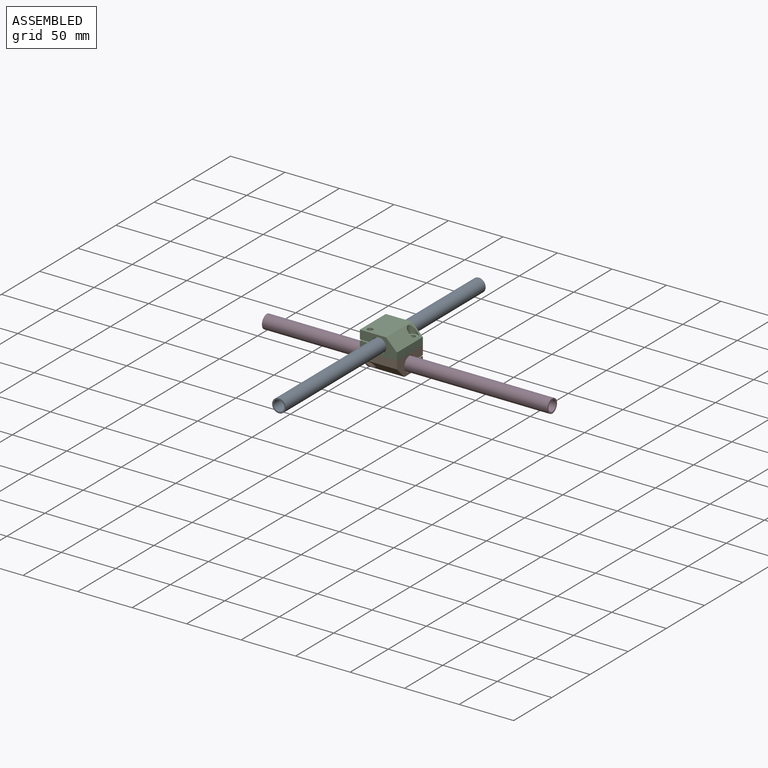
[diagram: assembled view]
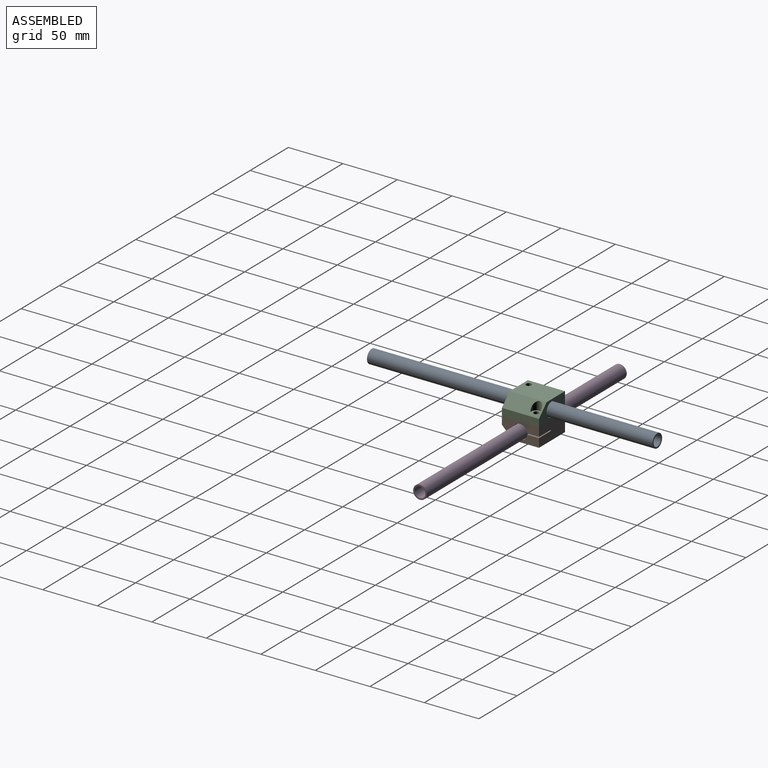
[diagram: assembled view, second angle]
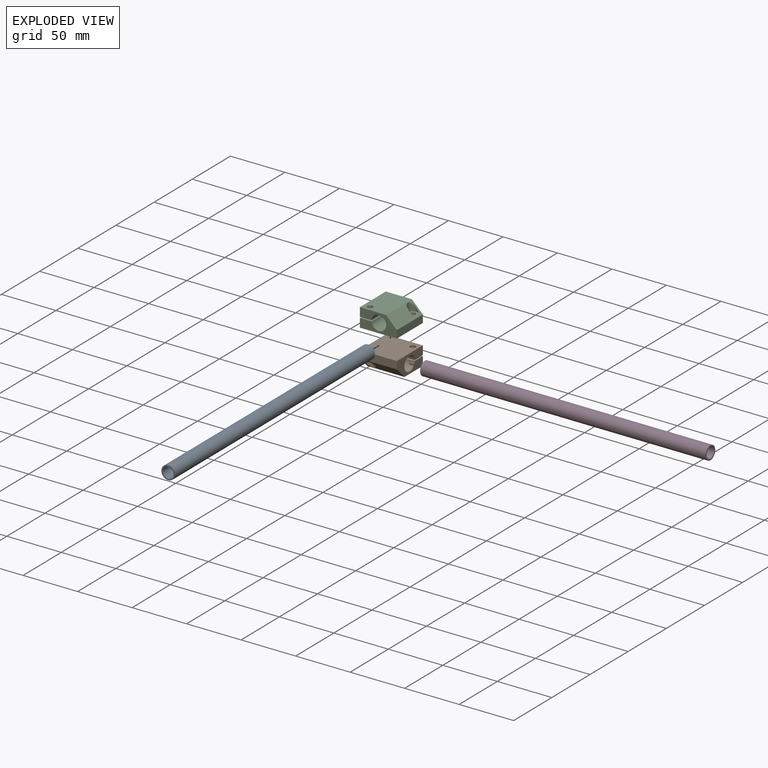
[diagram: exploded view]
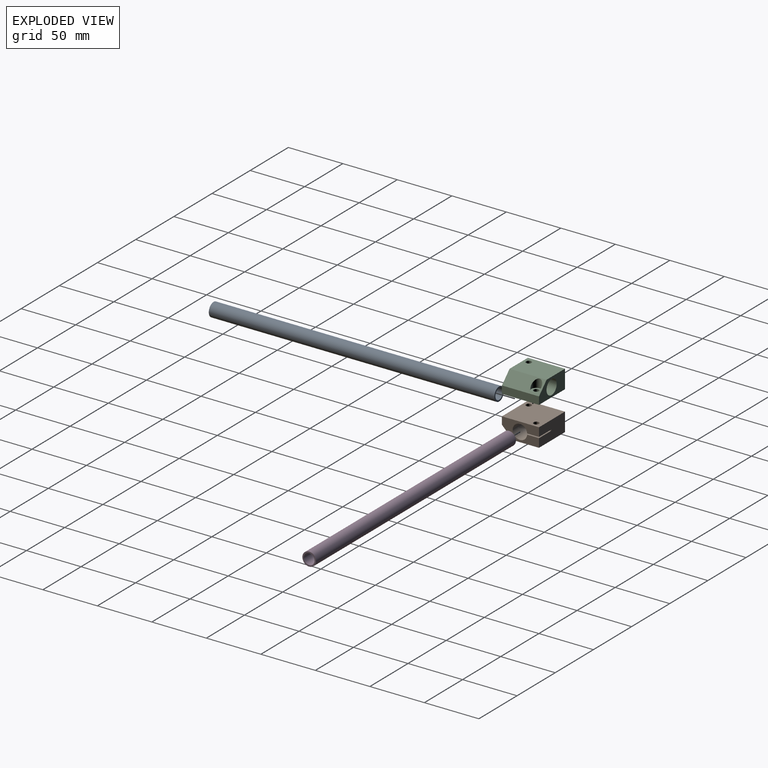
[diagram: exploded view, second angle]
ASSEMBLY  parts=4 mates=3
PART A: 7 faces, bbox 12.5x262x12.5 mm
  f0: cylinder r=4.95mm len=113.96mm, axis (0,1,0), area 3544.4mm2, adj f1,f2
  f1: plane 12.5x12.5mm, normal (0,1,0), area 45.7mm2, adj f0,f6
  f2: plane 9.9x9.9mm, normal (0,1,0), area 77mm2, adj f0
  f3: plane 9.9x9.9mm, normal (0,-1,0), area 77mm2, adj f4
  f4: cylinder r=4.95mm len=114.04mm, axis (0,1,0), area 3546.8mm2, adj f3,f5
  f5: plane 12.5x12.5mm, normal (0,-1,0), area 45.7mm2, adj f4,f6
  f6: cylinder r=6.25mm len=262mm, axis (0,1,0), area 10288.7mm2, adj f1,f5
PART B: 16 faces, bbox 34x34x17 mm
  f0: cylinder r=6.65mm len=34mm, axis (0,-1,0), area 1404.6mm2, adj f4,f6,f7,f8,f9
  f1: plane 34x7mm, normal (1,0,0), area 238mm2, adj f4,f5,f6,f10
  f2: plane 34x24mm, normal (0,0,1), area 796.4mm2, adj f3,f4,f6,f10,f15
  f3: plane 34x17mm, normal (-1,0,0), area 562mm2, adj f2,f4,f5,f6,f7,f8,f9
  f4: plane 34x17mm, normal (0,-1,0), area 378.2mm2, adj f0,f1,f2,f3,f5,f7,f8,f10
  f5: plane 34x34mm, normal (0,0,-1), area 1116.7mm2, adj f1,f3,f4,f6,f13,f14
  f6: plane 34x17mm, normal (0,1,0), area 389.1mm2, adj f0,f1,f2,f3,f5,f10
  f7: plane 16x10.87mm, normal (0,0,1), area 154.3mm2, adj f0,f3,f4,f9,f14
  f8: plane 16x10.87mm, normal (0,0,-1), area 154.3mm2, adj f0,f3,f4,f9,f15
  f9: plane 10.87x1mm, normal (0,-1,0), area 10.9mm2, adj f0,f3,f7,f8
  f10: plane 34x10mm, normal (0.71,0,0.71), area 396.3mm2, adj f1,f2,f4,f6,f11,f12
  f11: plane 9x8mm, normal (0,0,1), area 40.1mm2, adj f10,f12,f13
  f12: cylinder r=4.5mm len=9mm, axis (0,0,-1), area 103mm2, adj f10,f11
  f13: cylinder r=2.5mm len=8.5mm, axis (0,0,1), area 133.5mm2, adj f5,f11
  f14: cylinder r=2.5mm len=8mm, axis (0,0,1), area 125.7mm2, adj f5,f7
  f15: cylinder r=2.5mm len=8mm, axis (0,0,-1), area 125.7mm2, adj f2,f8
PART C: same geometry as B
PART D: same geometry as A
PLACE A t=(22.78,-16.41,-13.92)mm
PLACE B rot(axis=(0.71,-0.71,0),180deg) t=(22.31,0.09,-30.92)mm
PLACE C t=(22.78,0.55,-13.92)mm
PLACE D rot(axis=(0.71,-0.71,0),180deg) t=(39.28,0.09,-30.92)mm
MATE parallel B.f5 <-> C.f5  axis (0,0,1) through (22.26,0.61,-22.42)mm
MATE fastened D.f6 <-> B.f0  axis (-1,0,0) through (39.28,0.09,-30.92)mm
MATE fastened A.f6 <-> C.f0  axis (0,1,0) through (22.78,-16.41,-13.92)mm
